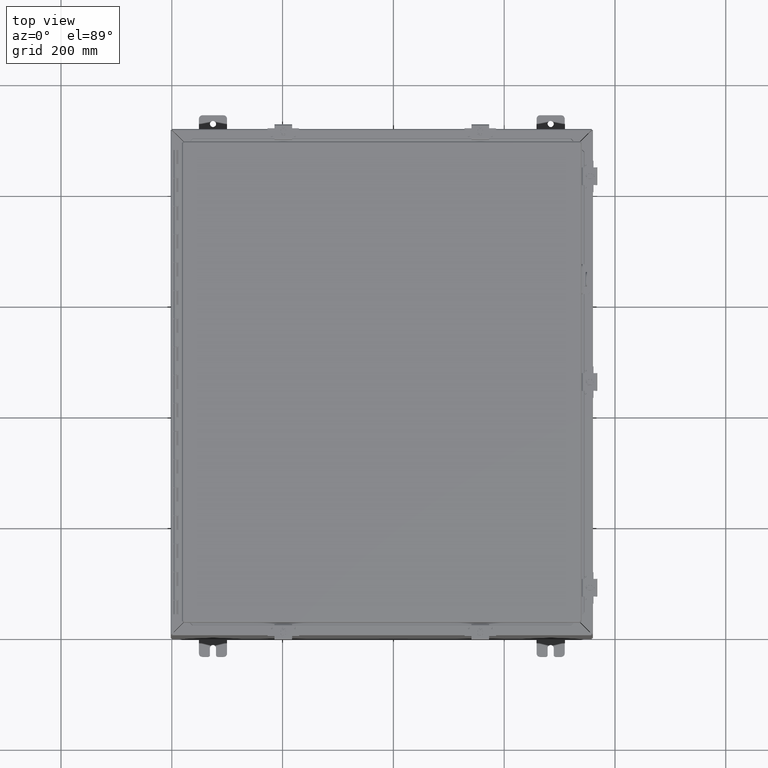
[diagram: clean part render]
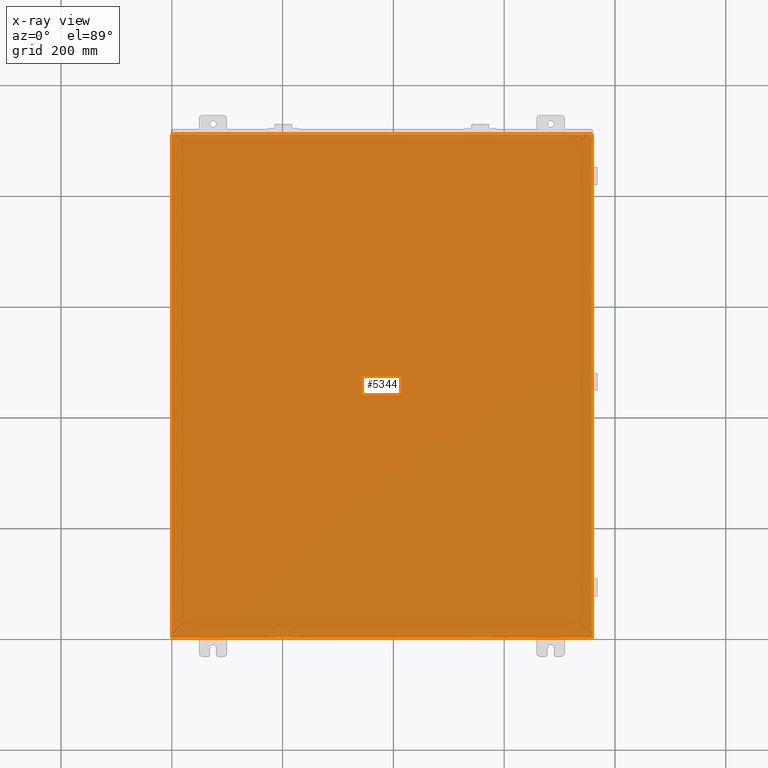
[diagram: x-ray — body ghosted, one internal face saturated and labeled with its STEP entity id]
A machine part, top view, then the same camera in x-ray: the body is ghosted and one INTERNAL B-rep face — a face not visible from any outside direction — is saturated and labeled: STEP entity #5344.
In plain terms, the highlighted planar face has unit normal (0, 0, 1).
Its self-contained STEP definition (entity closure, byte-faithful):
#5087=CARTESIAN_POINT('',(29.851999999999993,35.894750000000002,0.074));
#5088=VERTEX_POINT('',#5087);
#5113=CARTESIAN_POINT('',(-1.118965E-014,35.894750000000002,0.074));
#5114=VERTEX_POINT('',#5113);
#5150=CARTESIAN_POINT('',(29.851999999999997,35.894750000000002,0.074));
#5151=DIRECTION('',(-1.0,0.0,0.0));
#5152=VECTOR('',#5151,29.852000000000007);
#5153=LINE('',#5150,#5152);
#5154=EDGE_CURVE('',#5088,#5114,#5153,.T.);
#5204=CARTESIAN_POINT('',(0.0,0.105250000000001,0.074));
#5205=VERTEX_POINT('',#5204);
#5230=CARTESIAN_POINT('',(29.852,0.105250000000001,0.074));
#5231=VERTEX_POINT('',#5230);
#5267=CARTESIAN_POINT('',(0.0,0.105250000000001,0.074));
#5268=DIRECTION('',(1.0,0.0,0.0));
#5269=VECTOR('',#5268,29.852);
#5270=LINE('',#5267,#5269);
#5271=EDGE_CURVE('',#5205,#5231,#5270,.T.);
#5290=CARTESIAN_POINT('',(29.851999999999993,35.894750000000002,0.074));
#5291=DIRECTION('',(0.0,-1.0,0.0));
#5292=VECTOR('',#5291,35.789500000000004);
#5293=LINE('',#5290,#5292);
#5294=EDGE_CURVE('',#5088,#5231,#5293,.T.);
#5322=CARTESIAN_POINT('',(-2.000517E-016,0.105249999999998,0.074));
#5323=DIRECTION('',(0.0,1.0,0.0));
#5324=VECTOR('',#5323,35.789500000000004);
#5325=LINE('',#5322,#5324);
#5326=EDGE_CURVE('',#5205,#5114,#5325,.T.);
#5333=CARTESIAN_POINT('',(14.925999999999997,18.000000000000007,0.074));
#5334=DIRECTION('',(0.0,0.0,1.0));
#5335=DIRECTION('',(1.0,0.0,0.0));
#5336=AXIS2_PLACEMENT_3D('',#5333,#5334,#5335);
#5337=PLANE('',#5336);
#5338=ORIENTED_EDGE('',*,*,#5271,.T.);
#5339=ORIENTED_EDGE('',*,*,#5294,.F.);
#5340=ORIENTED_EDGE('',*,*,#5154,.T.);
#5341=ORIENTED_EDGE('',*,*,#5326,.F.);
#5342=EDGE_LOOP('',(#5338,#5339,#5340,#5341));
#5343=FACE_OUTER_BOUND('',#5342,.T.);
#5344=ADVANCED_FACE('',(#5343),#5337,.T.);